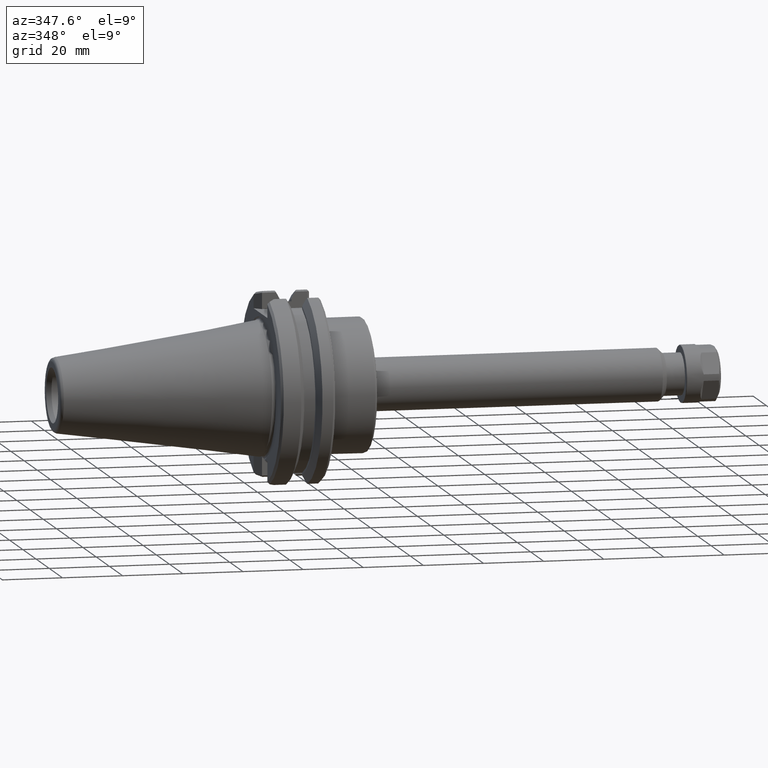
[diagram: clean part render]
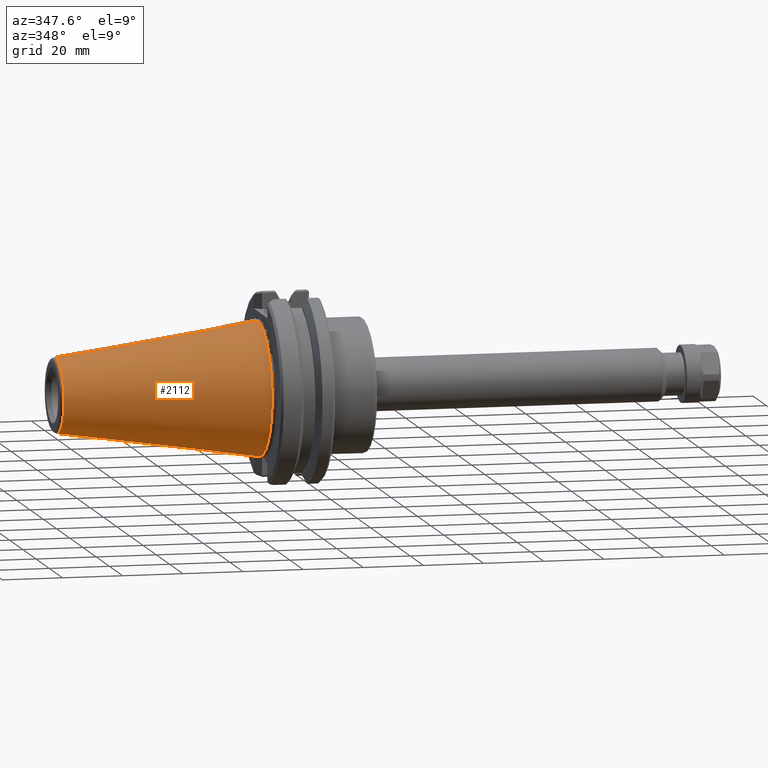
[diagram: same view with one face highlighted and labeled with its STEP entity id]
A machine part, auxiliary view. The second image highlights one B-rep face of the part: STEP entity #2112.
In plain terms, the highlighted conical surface has half-angle 8.297 deg.
Its self-contained STEP definition (entity closure, byte-faithful):
#108=CONICAL_SURFACE('',#2293,0.67903993059773,8.297);
#468=FACE_BOUND('',#728,.T.);
#563=FACE_OUTER_BOUND('',#727,.T.);
#727=EDGE_LOOP('',(#1725));
#728=EDGE_LOOP('',(#1726));
#864=CIRCLE('',#2280,0.875);
#870=CIRCLE('',#2291,0.48981834472846);
#1059=VERTEX_POINT('',#4208);
#1065=VERTEX_POINT('',#4225);
#1309=EDGE_CURVE('',#1059,#1059,#864,.T.);
#1315=EDGE_CURVE('',#1065,#1065,#870,.T.);
#1725=ORIENTED_EDGE('',*,*,#1309,.F.);
#1726=ORIENTED_EDGE('',*,*,#1315,.F.);
#2112=ADVANCED_FACE('',(#563,#468),#108,.T.);
#2280=AXIS2_PLACEMENT_3D('',#4209,#2682,#2683);
#2291=AXIS2_PLACEMENT_3D('',#4226,#2704,#2705);
#2293=AXIS2_PLACEMENT_3D('',#4228,#2708,#2709);
#2682=DIRECTION('center_axis',(1.,0.,0.));
#2683=DIRECTION('ref_axis',(-1.62451355720802E-13,1.,0.));
#2704=DIRECTION('center_axis',(-1.,-3.56945127670622E-15,7.13890255341328E-16));
#2705=DIRECTION('ref_axis',(3.56945127670622E-15,-1.,2.83346419976399E-30));
#2708=DIRECTION('center_axis',(1.,0.,0.));
#2709=DIRECTION('ref_axis',(-1.62451355720802E-13,1.,0.));
#4208=CARTESIAN_POINT('',(0.,0.875,0.));
#4209=CARTESIAN_POINT('Origin',(0.,0.,0.));
#4225=CARTESIAN_POINT('',(-2.64129243702512,0.489818344728471,-1.19970893607074E-16));
#4226=CARTESIAN_POINT('Origin',(-2.64129243702511,1.13644876536433E-14,
-5.99854468035363E-17));
#4228=CARTESIAN_POINT('Origin',(-1.34375,0.,0.));